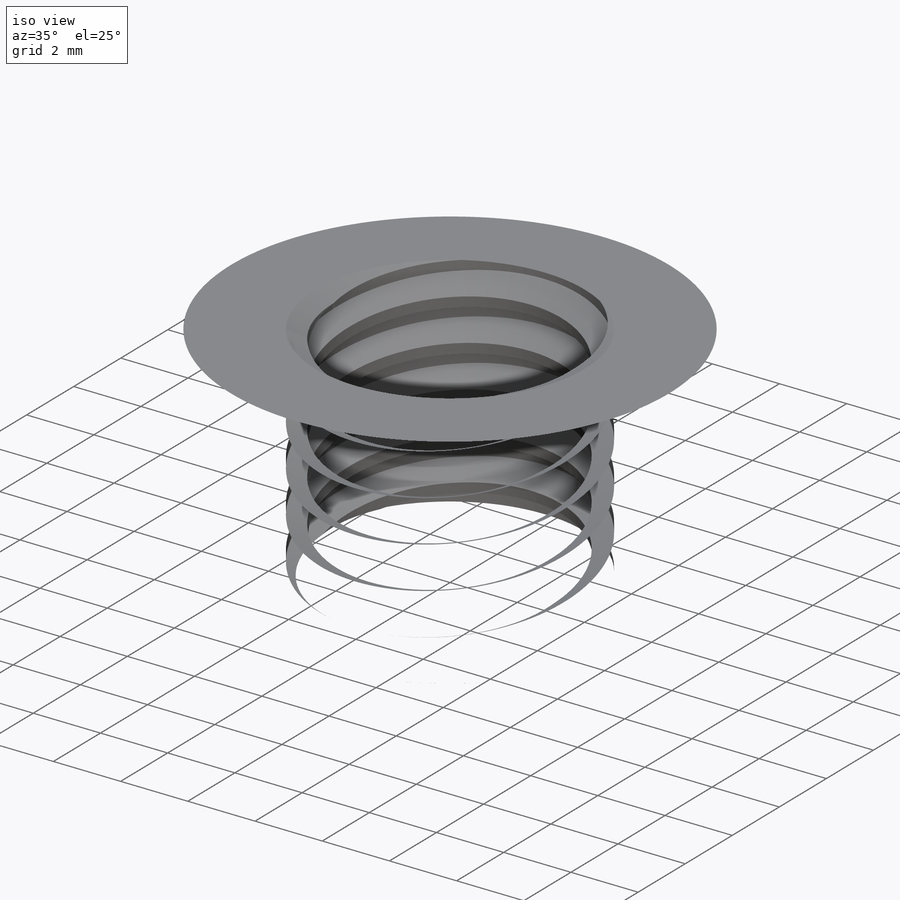
[diagram: iso view]
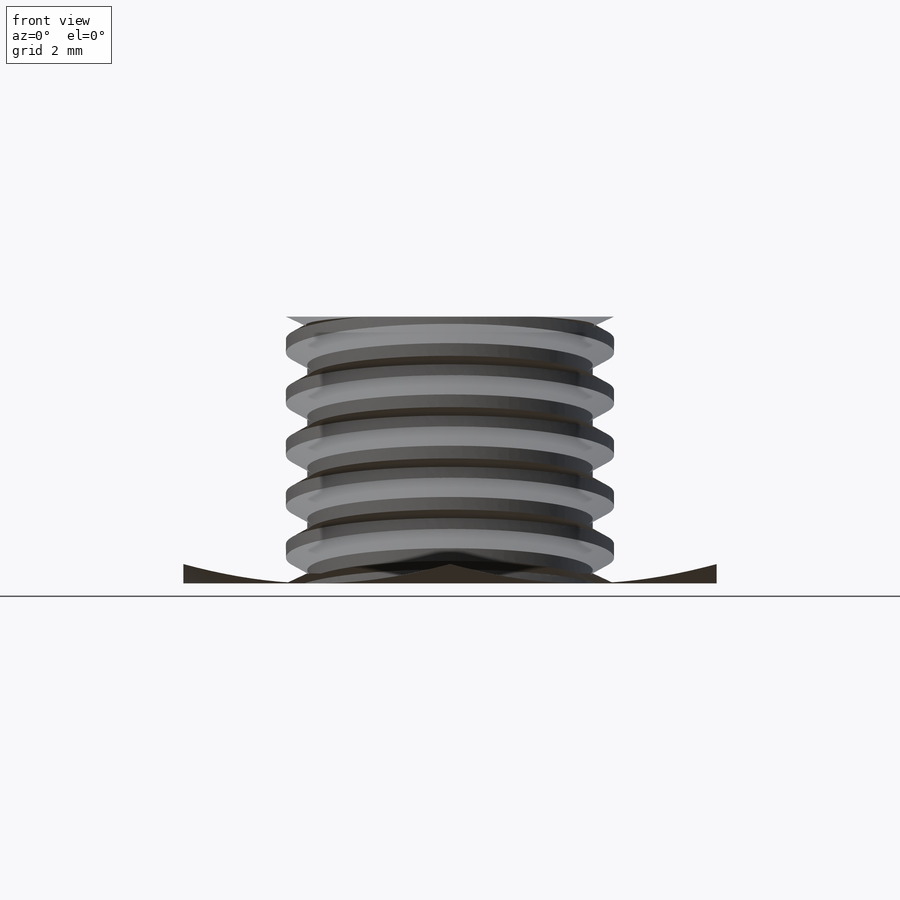
[diagram: front view]
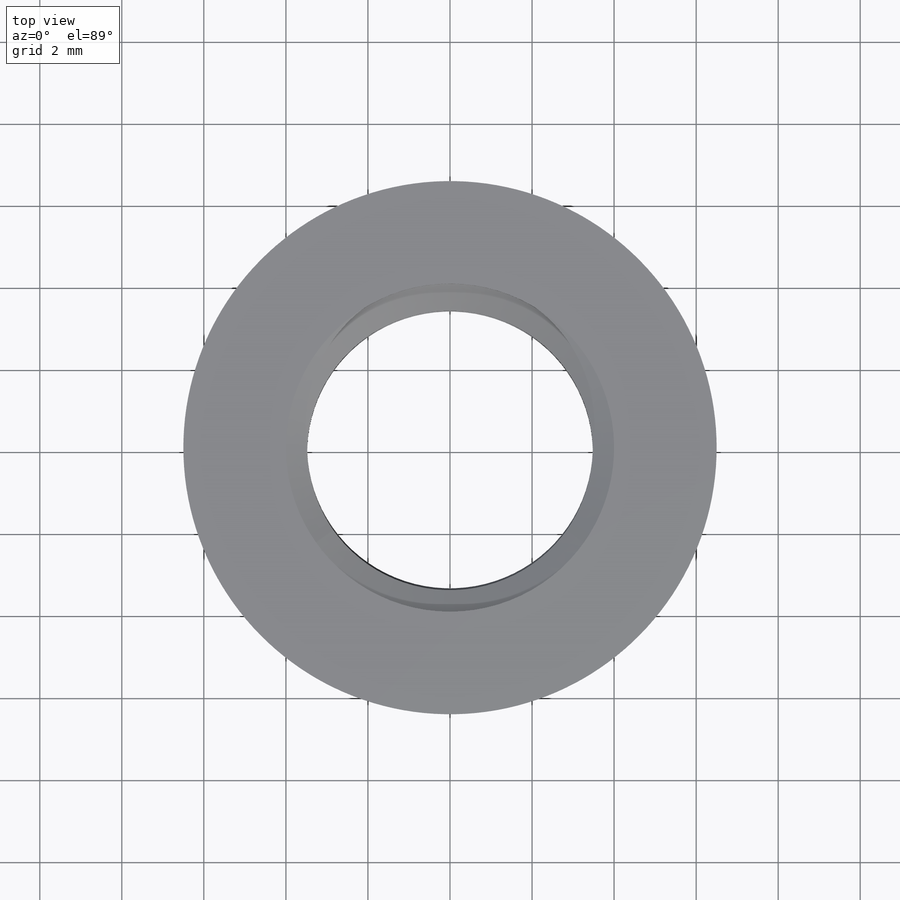
[diagram: top view]
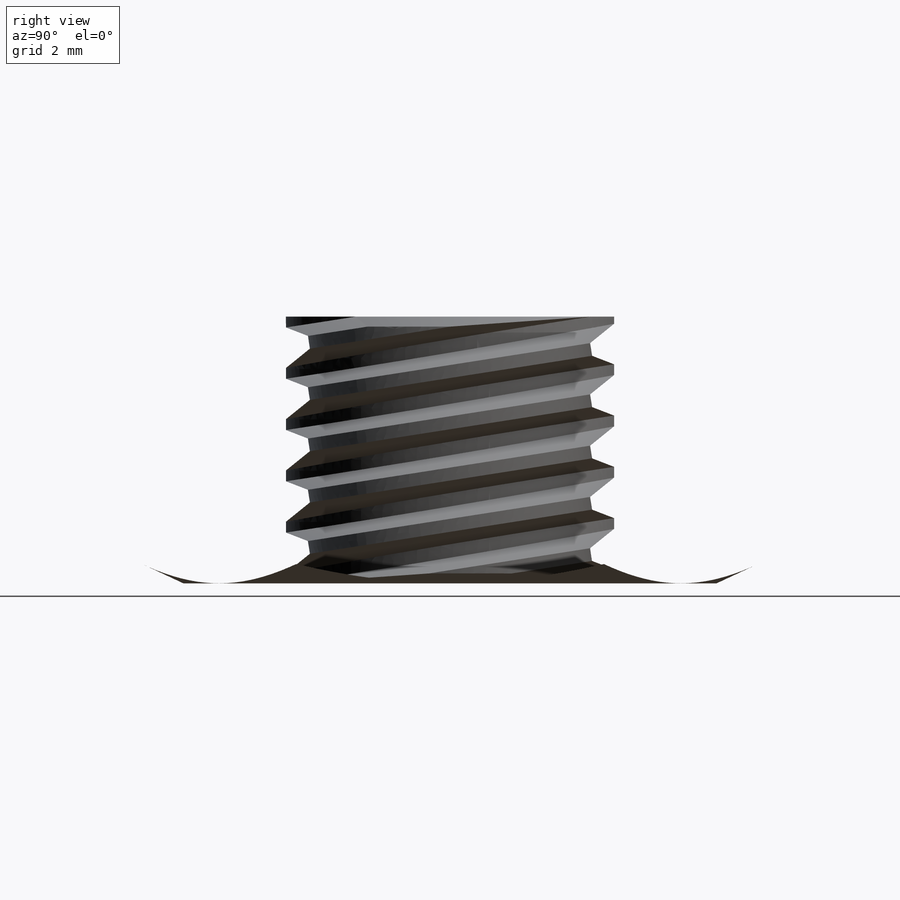
[diagram: right view]
SOLIDWORKS PART (.sldprt)
format: sldprt  version: not decoded by parser v0  size: 631,808 bytes
history: native  units: mm
features: sketch x5, cut_revolve x3, material x1, extrude x1, revolve x1, pattern_linear x1, boolean_combine x1 (+13 scaffold rows collapsed)
feature tree (26):
  scaffold x13  (default folders/planes/origin — collapsed)
  material  "Material <not specified>"
  sketch  "Sketch1"  dims[Hex Flats=13.0mm]
  extrude  "Extrude1"  Depth=6.5mm Height=6.5mm
  sketch  "Sketch2"  dims[Thread Dia=8.0mm]
  revolve  "Revolve1"  Angle=360deg
  sketch  "Sketch3"  dims[c1.D1=~0.15625mm c1.D2=0.3125mm c1.Thread Pitch=1.25mm c1.D4=~10.975183mm c2.D4=60.0deg c2.D5=1.25mm]
  cut_revolve  "Cut-Revolve1"  Angle=360deg
  pattern_linear  "LPattern1"  Count1=5 Count2=2 Spacing1=1.25mm Spacing2=1.25mm
  sketch  "Sketch4"  dims[c1.D1=~7.974547mm c2.D1=25.0deg]
  cut_revolve  "Cut-Revolve2"  Angle=360deg
  boolean_combine  "Combine1"
  sketch  "Sketch5"  dims[c1.D1=~25.750443mm c2.D1=25.0deg c2.D2=1.27mm c2.D3=~27.78125mm c2.D4=~23.151042mm c2.D5=~23.151042mm c3.D4=~20.981969mm c3.D5=~20.981969mm c4.D4=~20.981969mm c4.D5=~20.981969mm c5.D4=~20.981969mm c5.D5=~20.981969mm c6.D4=~20.981969mm c6.D5=~20.981969mm c7.D4=~27.78125mm c7.D5=~27.78125mm c7.D3=6.5mm]
  cut_revolve  "Cut-Revolve3"  Angle=360deg
decode coverage: 11 of 12 modeling features carry decoded parameters
note: ~ marks probable driven/reference dimensions
note: suppression state not decoded; provenance and decode notes live in map.json
